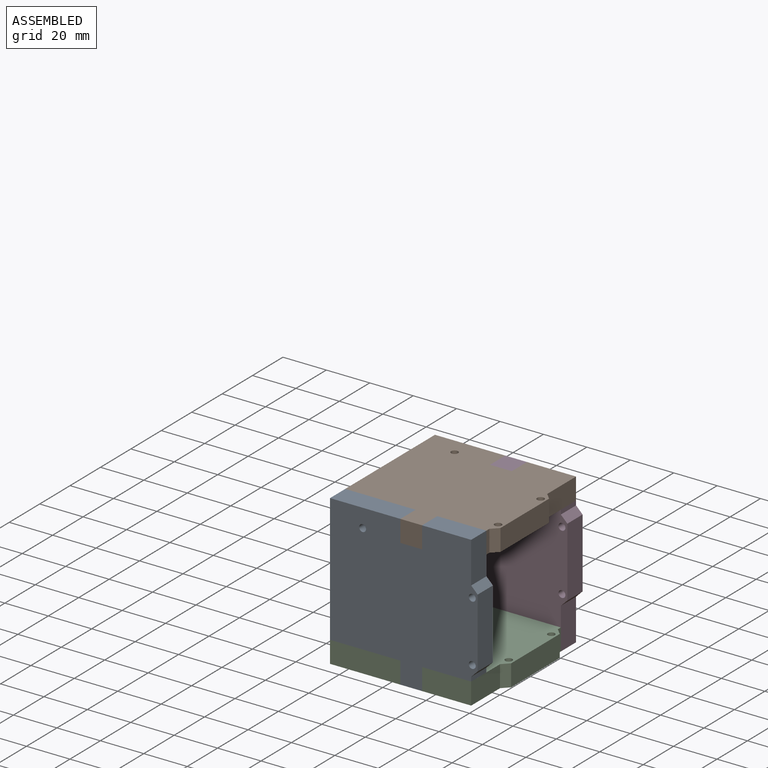
[diagram: assembled view]
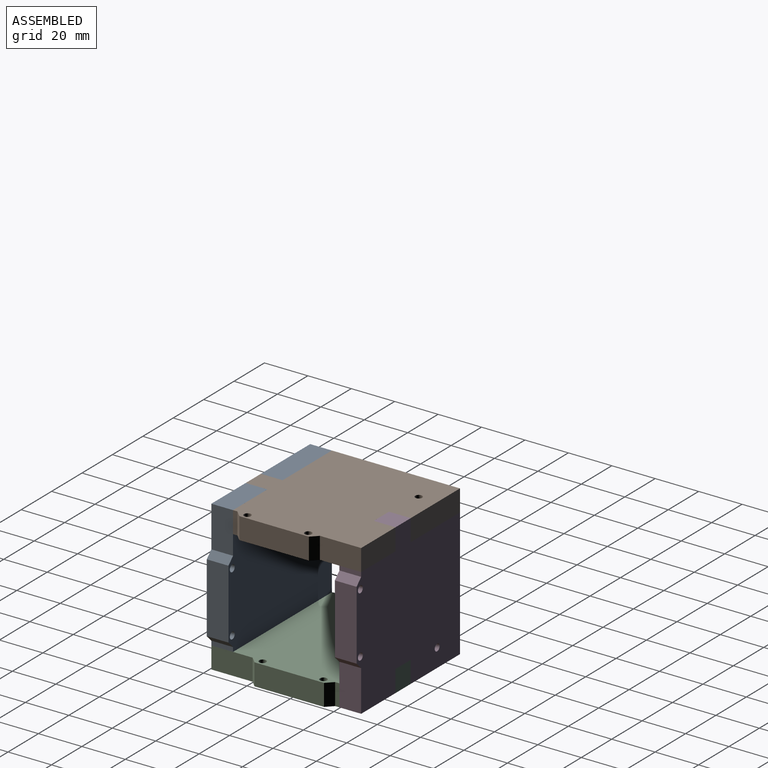
[diagram: assembled view, second angle]
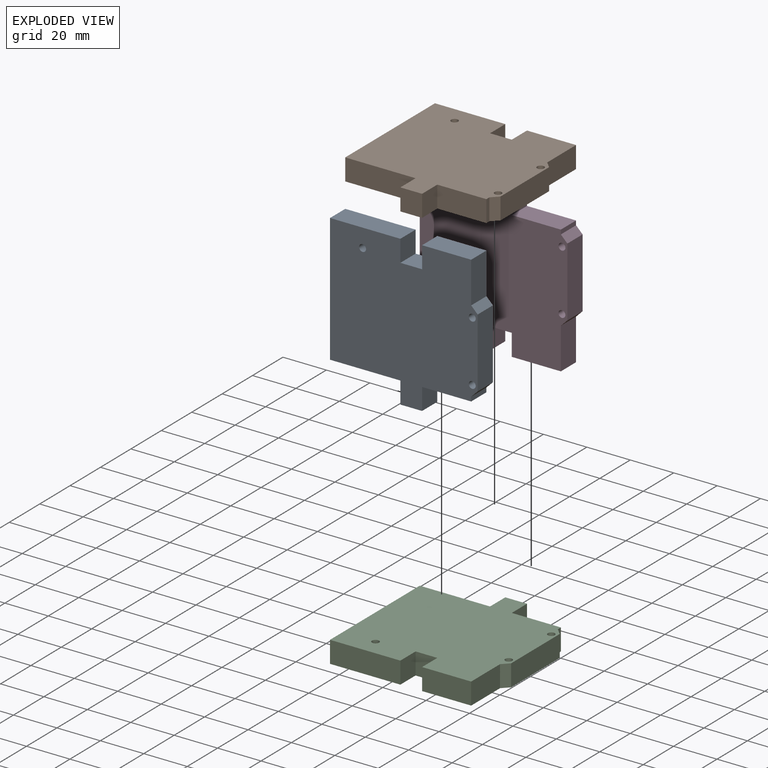
[diagram: exploded view]
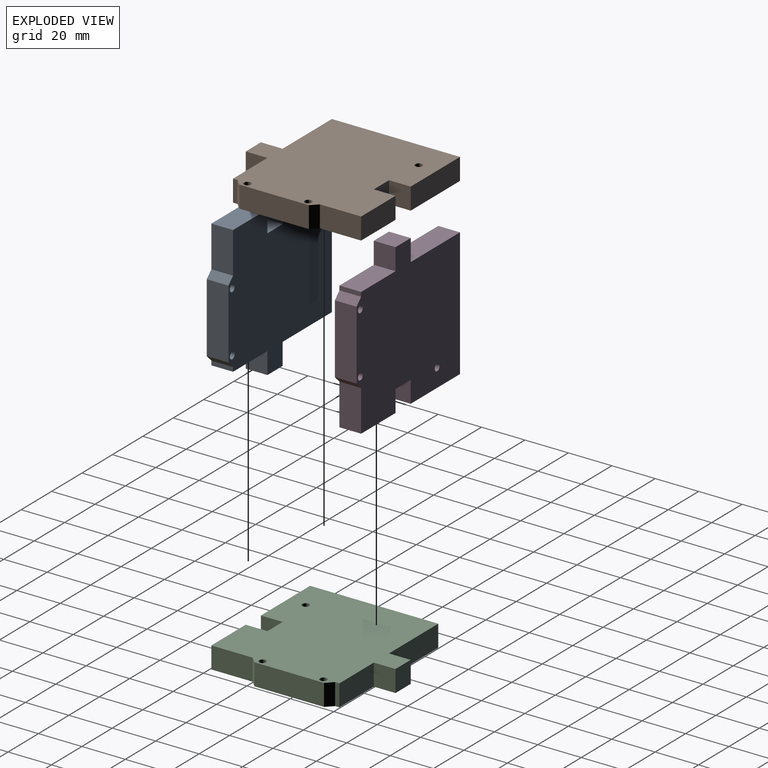
[diagram: exploded view, second angle]
ASSEMBLY  parts=4 mates=2
PART A: 21 faces, bbox 68x10x69 mm
  f0: plane 32.39x10mm, normal (0,0,-1), area 323.9mm2, adj f2,f3,f5,f18
  f1: plane 32.39x10mm, normal (0,0,1), area 323.9mm2, adj f2,f3,f5,f17
  f2: plane 69x68mm, normal (0,1,0), area 3915.9mm2, adj f0,f1,f4,f5,f6,f7,f8,f9
  f3: plane 69x68mm, normal (0,-1,0), area 3915.9mm2, adj f0,f1,f4,f5,f6,f7,f8,f9
  f4: plane 22.61x10mm, normal (0,0,1), area 226.1mm2, adj f2,f3,f10,f15
  f5: plane 59x10mm, normal (-1,0,0), area 590mm2, adj f0,f1,f2,f3
  f6: plane 22.61x10mm, normal (0,0,-1), area 226.1mm2, adj f2,f3,f14,f19
  f7: cylinder r=1.6mm len=10mm, axis (0,-1,0), area 100.5mm2, adj f2,f3
  f8: cylinder r=1.6mm len=10mm, axis (0,-1,0), area 100.5mm2, adj f2,f3
  f9: cylinder r=1.6mm len=10mm, axis (0,-1,0), area 100.5mm2, adj f2,f3
  f10: plane 19x10mm, normal (1,0,0), area 190mm2, adj f2,f3,f4,f11
  f11: plane 10x3mm, normal (0.71,0,0.71), area 42.4mm2, adj f2,f3,f10,f12
  f12: plane 32x10mm, normal (1,0,0), area 320mm2, adj f2,f3,f11,f13
  f13: plane 10x3mm, normal (0.71,0,-0.71), area 42.4mm2, adj f2,f3,f12,f14
  f14: plane 10x2mm, normal (1,0,0), area 20mm2, adj f2,f3,f6,f13
  f15: plane 10x10mm, normal (-1,0,0), area 100mm2, adj f2,f3,f4,f16
  f16: plane 10x10mm, normal (0,0,1), area 100mm2, adj f2,f3,f15,f17
  f17: plane 10x10mm, normal (1,0,0), area 100mm2, adj f1,f2,f3,f16
  f18: plane 10x10mm, normal (-1,0,0), area 100mm2, adj f0,f2,f3,f20
  f19: plane 10x10mm, normal (1,0,0), area 100mm2, adj f2,f3,f6,f20
  f20: plane 10x10mm, normal (0,0,-1), area 100mm2, adj f2,f3,f18,f19
PART B: same geometry as A
PART C: same geometry as A
PART D: same geometry as A
PLACE A t=(-61.37,52.8,32.01)mm
PLACE B rot(axis=(-1,0,0),90deg) t=(-61.37,86.48,47.33)mm
PLACE C rot(axis=(1,0,0),90deg) t=(-61.37,68.12,-1.67)mm
PLACE D rot(axis=(1,0,0),180deg) t=(-61.37,101.8,13.65)mm
MATE fastened D.f19 <-> B.f15  axis (1,0,0) through (-43.79,106.8,52.33)mm
MATE fastened B.f19 <-> A.f15  axis (1,0,0) through (-43.79,47.8,52.33)mm
